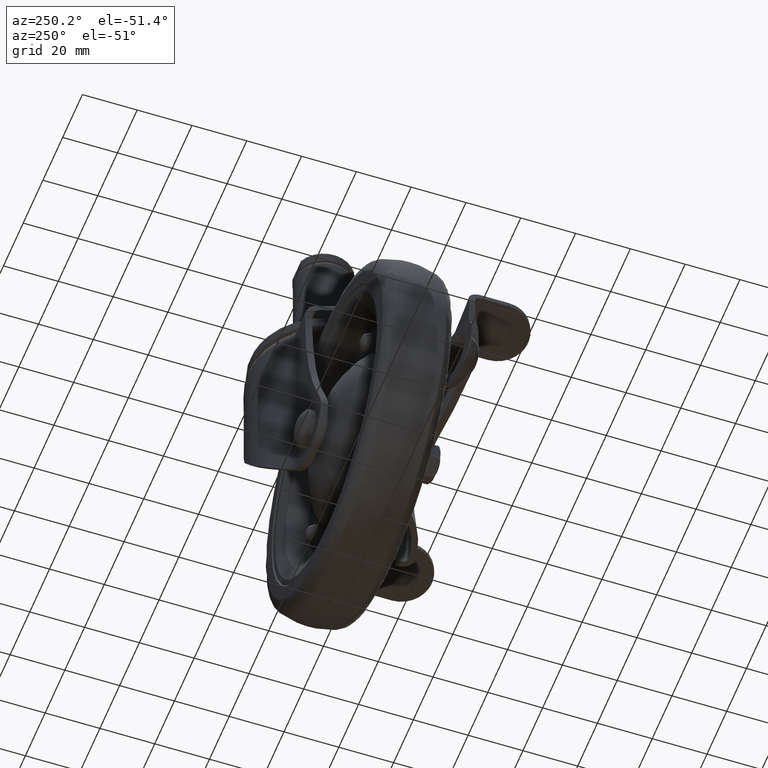
[diagram: clean part render]
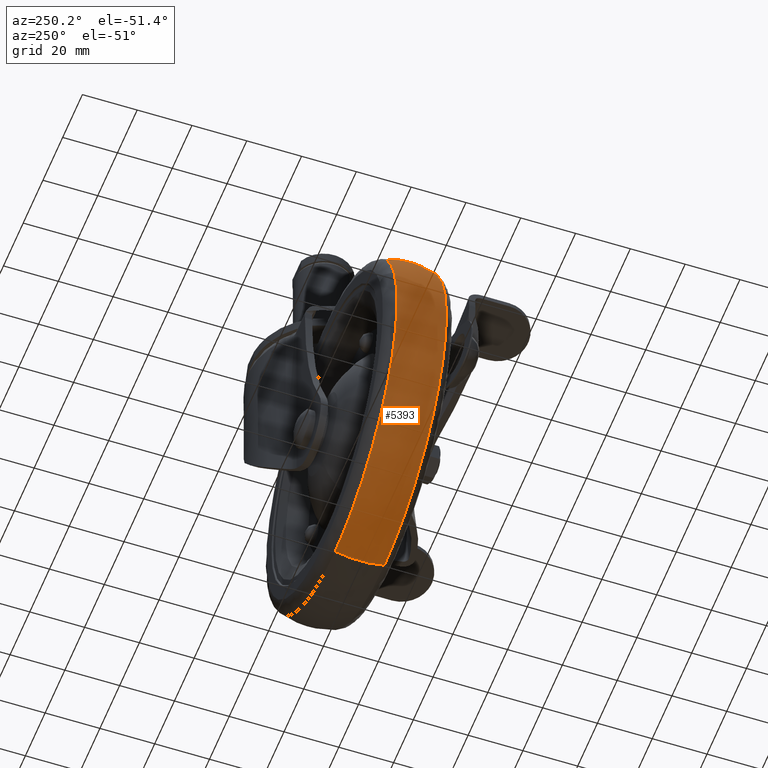
[diagram: same view with one face highlighted and labeled with its STEP entity id]
A machine part, auxiliary view. The second image highlights one B-rep face of the part: STEP entity #5393.
In plain terms, the highlighted face is a freeform B-spline surface patch.
Its self-contained STEP definition (entity closure, byte-faithful):
#5140=CARTESIAN_POINT('',(-96.504487925587142,8.999991561630935,-66.341103548060232));
#5141=VERTEX_POINT('',#5140);
#5155=CARTESIAN_POINT('',(-75.680395793614693,8.999999999934618,-36.273550142205089));
#5156=VERTEX_POINT('',#5155);
#5157=CARTESIAN_POINT('',(-75.680395793614693,8.999999999934618,-36.273550142205089));
#5158=CARTESIAN_POINT('',(-90.604389203050829,8.999995780782777,-48.182456924508251));
#5159=CARTESIAN_POINT('',(-96.504487925587142,8.999991561630937,-66.341103548060232));
#5167=(BOUNDED_CURVE()B_SPLINE_CURVE(2,(#5157,#5158,#5159),.UNSPECIFIED.,.F.,.U.)B_SPLINE_CURVE_WITH_KNOTS((3,3),(0.608098577602676,0.697450211231633),.UNSPECIFIED.)CURVE()GEOMETRIC_REPRESENTATION_ITEM()RATIONAL_B_SPLINE_CURVE((0.856230744649396,0.842076553771619,0.902750389073800))REPRESENTATION_ITEM(''));
#5168=EDGE_CURVE('',#5156,#5141,#5167,.T.);
#5272=CARTESIAN_POINT('',(-36.799428537468387,8.999999999969752,-149.613341018776510));
#5273=VERTEX_POINT('',#5272);
#5287=CARTESIAN_POINT('',(-96.504487925587142,8.999991561630937,-66.341103548060232));
#5288=CARTESIAN_POINT('',(-99.618178419210722,8.999992053587915,-75.924065520608991));
#5289=CARTESIAN_POINT('',(-99.618178217507975,8.999992727967394,-86.000187293301153));
#5290=CARTESIAN_POINT('',(-99.618176959909519,8.999996932662457,-148.823895502819540));
#5291=CARTESIAN_POINT('',(-36.799428537468401,8.999999999969752,-149.613341018776480));
#5299=(BOUNDED_CURVE()B_SPLINE_CURVE(2,(#5287,#5288,#5289,#5290,#5291),.UNSPECIFIED.,.F.,.U.)B_SPLINE_CURVE_WITH_KNOTS((3,2,3),(0.697450211231633,0.750000000000000,0.997784295921663),.UNSPECIFIED.)CURVE()GEOMETRIC_REPRESENTATION_ITEM()RATIONAL_B_SPLINE_CURVE((0.902750389073800,0.938434092878664,1.0,0.709702639984317,0.994854295643862))REPRESENTATION_ITEM(''));
#5300=EDGE_CURVE('',#5141,#5273,#5299,.T.);
#5321=CARTESIAN_POINT('',(-75.504608304233727,9.851504331603449,-36.493852931869348));
#5322=CARTESIAN_POINT('',(-98.954345004646768,9.851504331603447,-55.206057378277166));
#5323=CARTESIAN_POINT('',(-99.331333897048353,9.851504331603447,-85.204301092499307));
#5324=CARTESIAN_POINT('',(-100.127220804549050,9.851504331603449,-148.535634989547650));
#5325=CARTESIAN_POINT('',(-36.795886907500659,9.851504331603447,-149.331521897048360));
#5326=CARTESIAN_POINT('',(-77.640878913052177,2.167538E-014,-33.816724032326995));
#5327=CARTESIAN_POINT('',(-102.358695097049280,2.278532E-014,-53.540818840416449));
#5328=CARTESIAN_POINT('',(-102.756070226025740,2.155439E-014,-85.161262321038933));
#5329=CARTESIAN_POINT('',(-103.594995904986800,2.268466E-014,-151.917332547064630));
#5330=CARTESIAN_POINT('',(-36.838925678961019,2.155439E-014,-152.756258226025810));
#5331=CARTESIAN_POINT('',(-75.504608304233741,-9.851504331603405,-36.493852931869341));
#5332=CARTESIAN_POINT('',(-98.954345004646754,-9.851504331603403,-55.206057378277166));
#5333=CARTESIAN_POINT('',(-99.331333897048353,-9.851504331603405,-85.204301092499307));
#5334=CARTESIAN_POINT('',(-100.127220804549040,-9.851504331603403,-148.535634989547620));
#5335=CARTESIAN_POINT('',(-36.795886907500666,-9.851504331603405,-149.331521897048360));
#5343=(BOUNDED_SURFACE()B_SPLINE_SURFACE(2,2,((#5321,#5326,#5331),(#5322,#5327,#5332),(#5323,#5328,#5333),(#5324,#5329,#5334),(#5325,#5330,#5335)),.UNSPECIFIED.,.F.,.F.,.U.)B_SPLINE_SURFACE_WITH_KNOTS((3,2,3),(3,3),(0.0,60.309488519135222,168.005014736140000),(0.0,20.264909108959809),.UNSPECIFIED.)GEOMETRIC_REPRESENTATION_ITEM()RATIONAL_B_SPLINE_SURFACE(((0.802569854433738,0.758062932983514,0.802569854433738),(0.784108710068189,0.740625560813768,0.784108710068189),(0.937951726497231,0.885937134141568,0.937951726497231),(0.663232026231822,0.626452155256479,0.663232026231822),(0.937951726497231,0.885937134141568,0.937951726497231)))REPRESENTATION_ITEM('')SURFACE());
#5344=CARTESIAN_POINT('',(-75.680395793634588,-8.999999999863338,-36.273550142192313));
#5345=VERTEX_POINT('',#5344);
#5346=CARTESIAN_POINT('',(-36.799428537469950,-8.999999999967798,-149.613341018777110));
#5347=VERTEX_POINT('',#5346);
#5348=CARTESIAN_POINT('',(-75.680395793634588,-8.999999999863338,-36.273550142192306));
#5349=CARTESIAN_POINT('',(-99.618176042508296,-9.0,-55.375195369354977));
#5350=CARTESIAN_POINT('',(-99.618176042508310,-9.0,-86.000188000000009));
#5351=CARTESIAN_POINT('',(-99.618176042508296,-9.0,-148.823895800894210));
#5352=CARTESIAN_POINT('',(-36.799428537469950,-8.999999999967798,-149.613341018777110));
#5360=(BOUNDED_CURVE()B_SPLINE_CURVE(2,(#5348,#5349,#5350,#5351,#5352),.UNSPECIFIED.,.F.,.U.)B_SPLINE_CURVE_WITH_KNOTS((3,2,3),(0.608098577602712,0.750000000000000,0.997784295921654),.UNSPECIFIED.)CURVE()GEOMETRIC_REPRESENTATION_ITEM()RATIONAL_B_SPLINE_CURVE((0.856230744649385,0.833752142559404,1.0,0.709702639984327,0.994854295643842))REPRESENTATION_ITEM(''));
#5361=EDGE_CURVE('',#5345,#5347,#5360,.T.);
#5362=ORIENTED_EDGE('',*,*,#5361,.F.);
#5363=CARTESIAN_POINT('',(-75.680395793614693,8.999999999934618,-36.273550142205096));
#5364=CARTESIAN_POINT('',(-77.445774361371519,7.832743E-011,-34.061214832406350));
#5365=CARTESIAN_POINT('',(-75.680395793634588,-8.999999999863338,-36.273550142192313));
#5373=(BOUNDED_CURVE()B_SPLINE_CURVE(2,(#5363,#5364,#5365),.UNSPECIFIED.,.F.,.U.)B_SPLINE_CURVE_WITH_KNOTS((3,3),(-1.494101281919497,-0.505898718088705),.UNSPECIFIED.)CURVE()GEOMETRIC_REPRESENTATION_ITEM()RATIONAL_B_SPLINE_CURVE((0.798711031346629,0.761921763407109,0.798711031346019))REPRESENTATION_ITEM(''));
#5374=EDGE_CURVE('',#5156,#5345,#5373,.T.);
#5375=ORIENTED_EDGE('',*,*,#5374,.F.);
#5376=ORIENTED_EDGE('',*,*,#5168,.T.);
#5377=ORIENTED_EDGE('',*,*,#5300,.T.);
#5378=CARTESIAN_POINT('',(-36.799428537468387,8.999999999969750,-149.613341018776480));
#5379=CARTESIAN_POINT('',(-36.834995067937932,2.154996E-012,-152.443486603852220));
#5380=CARTESIAN_POINT('',(-36.799428537469950,-8.999999999967798,-149.613341018777050));
#5388=(BOUNDED_CURVE()B_SPLINE_CURVE(2,(#5378,#5379,#5380),.UNSPECIFIED.,.F.,.U.)B_SPLINE_CURVE_WITH_KNOTS((3,3),(-1.494101281923541,-0.505898718076683),.UNSPECIFIED.)CURVE()GEOMETRIC_REPRESENTATION_ITEM()RATIONAL_B_SPLINE_CURVE((0.933441971641477,0.890446888997332,0.933441971641458))REPRESENTATION_ITEM(''));
#5389=EDGE_CURVE('',#5273,#5347,#5388,.T.);
#5390=ORIENTED_EDGE('',*,*,#5389,.T.);
#5391=EDGE_LOOP('',(#5362,#5375,#5376,#5377,#5390));
#5392=FACE_OUTER_BOUND('',#5391,.T.);
#5393=ADVANCED_FACE('',(#5392),#5343,.T.);